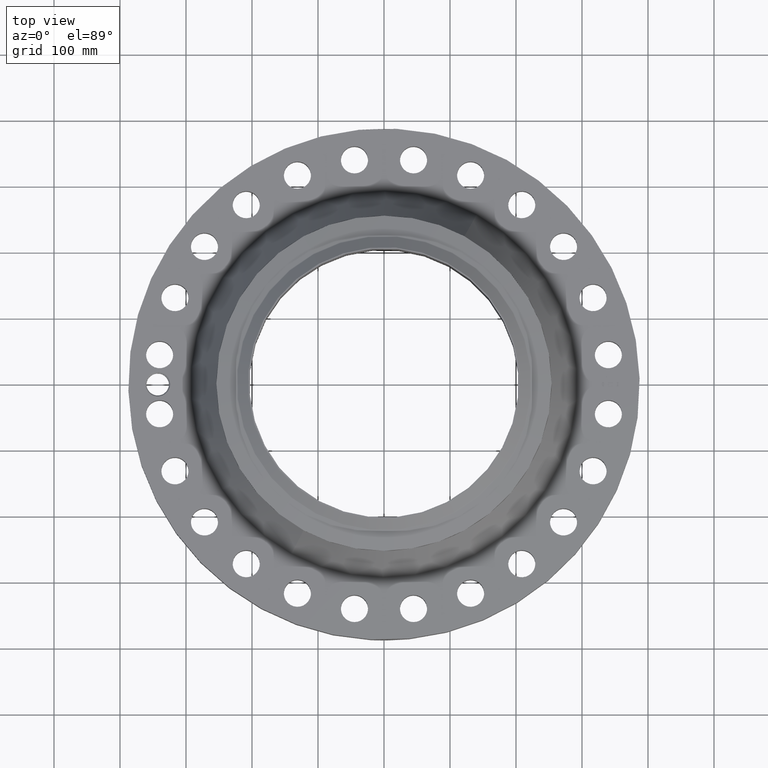
[diagram: clean part render]
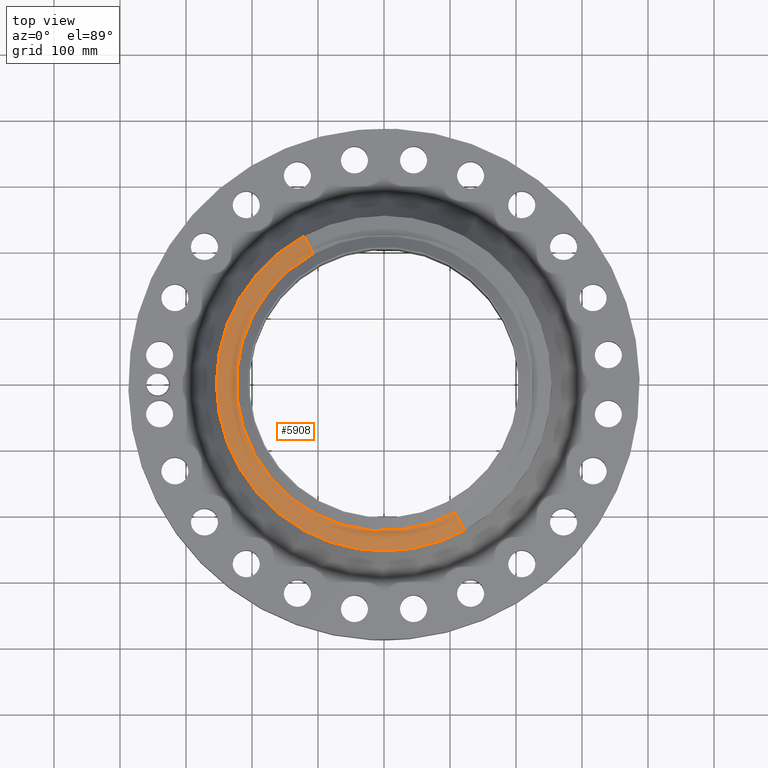
[diagram: same view with one face highlighted and labeled with its STEP entity id]
A machine part, top view. The second image highlights one B-rep face of the part: STEP entity #5908.
In plain terms, the highlighted conical surface has half-angle 80 deg.
Its self-contained STEP definition (entity closure, byte-faithful):
#4427=AXIS2_PLACEMENT_3D('Circle Axis2P3D',#4425,#4426,$) ;
#4440=AXIS2_PLACEMENT_3D('Circle Axis2P3D',#4438,#4439,$) ;
#5240=AXIS2_PLACEMENT_3D('Circle Axis2P3D',#5238,#5239,$) ;
#5881=AXIS2_PLACEMENT_3D('Cone Axis2P3D',#5878,#5879,#5880) ;
#4408=CARTESIAN_POINT('Vertex',(-4.79425538606,-8.77582561894,6.14114500327)) ;
#4422=CARTESIAN_POINT('Vertex',(4.79425538606,-8.77582561894,6.14114500327)) ;
#4425=CARTESIAN_POINT('Axis2P3D Location',(0.,0.,6.14114500327)) ;
#4438=CARTESIAN_POINT('Axis2P3D Location',(0.,0.,6.14114500327)) ;
#4442=CARTESIAN_POINT('Vertex',(-4.79425538606,8.77582561894,6.14114500327)) ;
#5235=CARTESIAN_POINT('Vertex',(-4.22253746359,7.72930298158,6.35141601924)) ;
#5238=CARTESIAN_POINT('Axis2P3D Location',(0.,0.,6.35141601924)) ;
#5242=CARTESIAN_POINT('Vertex',(4.22253746359,-7.72930298158,6.35141601924)) ;
#5878=CARTESIAN_POINT('Axis2P3D Location',(0.,0.,6.35141601924)) ;
#5883=CARTESIAN_POINT('Line Origine',(-4.50839642483,8.25256430026,6.24628051126)) ;
#5888=CARTESIAN_POINT('Line Origine',(4.50839642483,-8.25256430026,6.24628051126)) ;
#4426=DIRECTION('Axis2P3D Direction',(0.,0.,-0.0393700787402)) ;
#4439=DIRECTION('Axis2P3D Direction',(0.,0.,-0.0393700787402)) ;
#5239=DIRECTION('Axis2P3D Direction',(0.,0.,0.0393700787402)) ;
#5879=DIRECTION('Axis2P3D Direction',(-0.,-0.,-0.0393700787402)) ;
#5880=DIRECTION('Axis2P3D XDirection',(0.0188750212049,-0.0345504945626,0.)) ;
#5884=DIRECTION('Vector Direction',(-0.0185882672208,0.0340255949157,-0.00683654242783)) ;
#5889=DIRECTION('Vector Direction',(0.0185882672208,-0.0340255949157,-0.00683654242783)) ;
#5885=VECTOR('Line Direction',#5884,0.0393700787402) ;
#5890=VECTOR('Line Direction',#5889,0.0393700787402) ;
#5902=ORIENTED_EDGE('',*,*,#5892,.F.) ;
#5903=ORIENTED_EDGE('',*,*,#5244,.F.) ;
#5904=ORIENTED_EDGE('',*,*,#5887,.T.) ;
#5905=ORIENTED_EDGE('',*,*,#4444,.T.) ;
#5906=ORIENTED_EDGE('',*,*,#4429,.F.) ;
#5908=ADVANCED_FACE('PartBody',(#5907),#5882,.T.) ;
#4428=CIRCLE('generated circle',#4427,10.) ;
#4441=CIRCLE('generated circle',#4440,10.) ;
#5241=CIRCLE('generated circle',#5240,8.80749380996) ;
#5882=CONICAL_SURFACE('Cone',#5881,8.80749380996,1.3962634016) ;
#4429=EDGE_CURVE('',#4423,#4409,#4428,.T.) ;
#4444=EDGE_CURVE('',#4443,#4409,#4441,.F.) ;
#5244=EDGE_CURVE('',#5236,#5243,#5241,.T.) ;
#5887=EDGE_CURVE('',#5236,#4443,#5886,.T.) ;
#5892=EDGE_CURVE('',#5243,#4423,#5891,.T.) ;
#5901=EDGE_LOOP('',(#5902,#5903,#5904,#5905,#5906)) ;
#5907=FACE_OUTER_BOUND('',#5901,.T.) ;
#5886=LINE('Line',#5883,#5885) ;
#5891=LINE('Line',#5888,#5890) ;
#4409=VERTEX_POINT('',#4408) ;
#4423=VERTEX_POINT('',#4422) ;
#4443=VERTEX_POINT('',#4442) ;
#5236=VERTEX_POINT('',#5235) ;
#5243=VERTEX_POINT('',#5242) ;